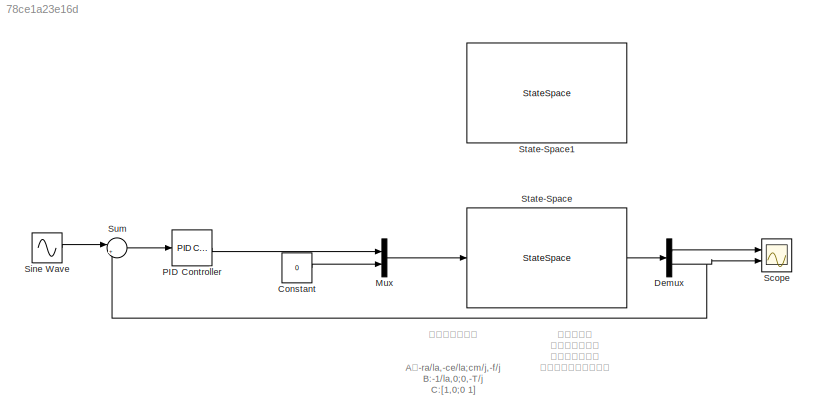
MODEL slx_78ce1a23e16d
KIND model
CONFIG AbsTol = auto
CONFIG EnableMultiTasking = off
CONFIG FixedStep = auto
CONFIG MaxStep = auto
CONFIG MinStep = auto
CONFIG RelTol = 1e-3
CONFIG SampleTimeConstraint = Unconstrained
CONFIG Solver = VariableStepAuto
CONFIG SolverName = VariableStepAuto
CONFIG StartTime = 0.0
CONFIG StopTime = 10
BLOCK [Constant] Constant
  Value = 0
BLOCK [Demux] Demux
  DisplayOption = bar
  Outputs = 2
  Ports = [1, 2]
BLOCK [Mux] Mux
  DisplayOption = bar
  Inputs = 2
  Ports = [2, 1]
BLOCK [Reference] PID Controller  REF=simulink/Continuous/PID Controller
  Ports = [1, 1]
  SourceBlock = simulink/Continuous/PID Controller
  SourceProductBaseCode = SL
  SourceProductName = Simulink
  SourceType = PID 1dof
BLOCK [Scope] Scope
  Floating = off
  NumInputPorts = 2
  Ports = [2]
  ScopeSpecificationString = Simulink.scopes.TimeScopeBlockCfg('CurrentConfiguration', extmgr.ConfigurationSet(extmgr.Configuration('Core','General UI',true),extmgr.Configuration('Core','Source UI',true),extmgr.Configuration('Sources','WiredSimulink',true),extmgr.Configuration('Visuals','Time Domain',true,'SerializedDisplays',{struct('MinYLimReal','-2624.87932','MaxYLimReal','3943.10963','YLabelReal','','MinYLimMag','  0.0000...<+1387ch>
BLOCK [Sin] Sine Wave
  Amplitude = 1000
  Ports = [0, 1]
  SampleTime = 0
BLOCK [StateSpace] State-Space
  A = [-2000 -26185;0.52, -0.00121]
  B = [-1030900 0;0 -1.7544]
  C = [1,0;0 1]
  D = [0 0;0 0]
  InitialCondition = 0
  Ports = [1, 1]
BLOCK [StateSpace] State-Space1
  A = [-2000 -26185;0.52, -0.00121]
  B = [-10309 0;0 -1.7544]
  C = [1,0;0 1]
  D = [0 0;0 0]
  InitialCondition = 0
  Ports = [1, 1]
BLOCK [Sum] Sum
  IconShape = round
  InputSameDT = off
  Inputs = |+-
  OutDataTypeStr = Inherit: Inherit via internal rule
  Ports = [2, 1]
  SaturateOnIntegerOverflow = off
ANNOTATION (root): 状态空间方程： A：-ra/la,-ce/la;cm/j,-f/j B:-1/la,0;0,-T/j C:[1,0;0 1] D:[0 0;0 0] ra:0.194 la:0.097e-3 i:待定0.57 f：0.0069 ce:2.54 cm:0.3
ANNOTATION (root): 输入输出： 输入电压，负载 输出电流，转速 此方法避开了电流环，
LINE Constant:1 -> Mux:2
LINE Demux:1 -> Scope:1
NET Demux:2 -> Scope:2, Sum:2
LINE Mux:1 -> State-Space:1
LINE PID Controller:1 -> Mux:1
LINE Sine Wave:1 -> Sum:1
LINE State-Space:1 -> Demux:1
LINE Sum:1 -> PID Controller:1
note: NET lines group one-source signal fan-out (src -> all destinations, sorted); 1:1 wires keep LINE
